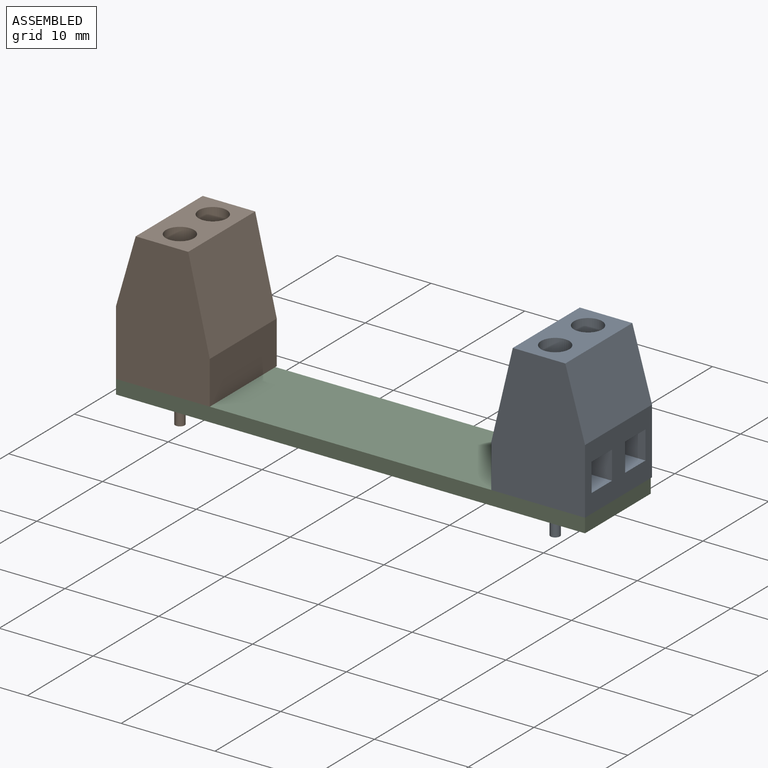
[diagram: assembled view]
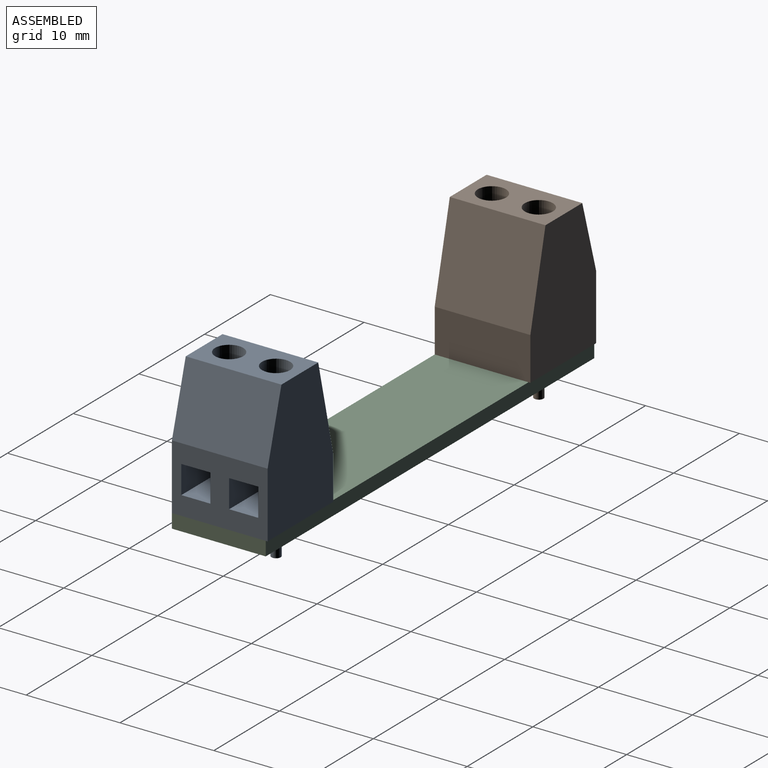
[diagram: assembled view, second angle]
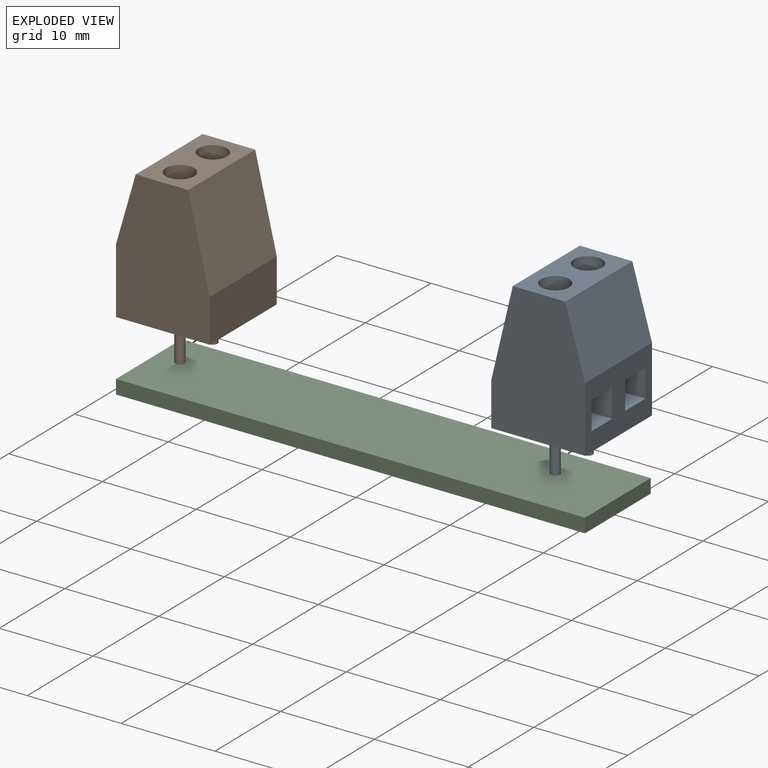
[diagram: exploded view]
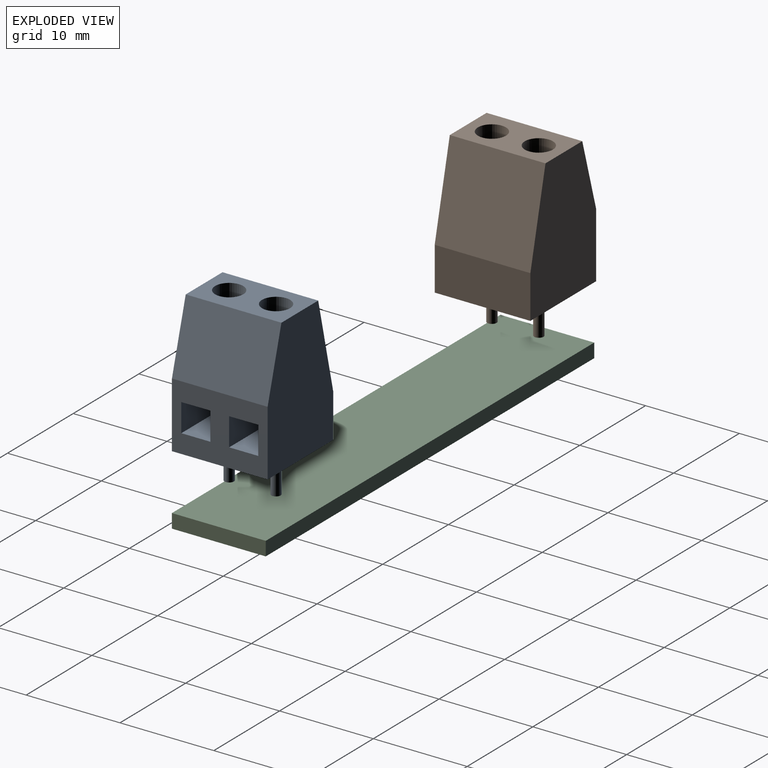
[diagram: exploded view, second angle]
ASSEMBLY  parts=3 mates=2
PART A: 26 faces, bbox 10x10.2x18.3 mm
  f0: plane 10.2x7mm, normal (1,0,0), area 52.8mm2, adj f3,f4,f6,f7,f12,f13,f14,f15
  f1: plane 10.2x9.7mm, normal (-0.97,0,0.23), area 101.7mm2, adj f2,f5,f6,f7
  f2: plane 10.2x4.6mm, normal (-1,0,0), area 46.9mm2, adj f1,f3,f6,f7
  f3: plane 10.2x10mm, normal (0,0,-1), area 100.4mm2, adj f0,f2,f6,f7,f8,f10
  f4: plane 10.2x7.3mm, normal (0.96,0,0.28), area 77.5mm2, adj f0,f5,f6,f7
  f5: plane 10.2x5.6mm, normal (0,0,1), area 43mm2, adj f1,f4,f6,f7,f22,f24
  f6: plane 14.3x10mm, normal (0,-1,0), area 124.2mm2, adj f0,f1,f2,f3,f4,f5
  f7: plane 14.3x10mm, normal (0,1,0), area 124.2mm2, adj f0,f1,f2,f3,f4,f5
  f8: cylinder r=0.5mm len=4mm, axis (0,0,1), area 12.6mm2, adj f3,f9
  f9: plane 1x1mm, normal (0,0,-1), area 0.8mm2, adj f8
  f10: cylinder r=0.5mm len=4mm, axis (0,0,1), area 12.6mm2, adj f3,f11
  f11: plane 1x1mm, normal (0,0,-1), area 0.8mm2, adj f10
  f12: plane 6x3mm, normal (0,1,0), area 18mm2, adj f0,f13,f15,f16
  f13: plane 6x3.1mm, normal (0,0,1), area 18.6mm2, adj f0,f12,f14,f16
  f14: plane 6x3mm, normal (0,-1,0), area 18mm2, adj f0,f13,f15,f16
  f15: plane 6x3.1mm, normal (0,0,-1), area 18.6mm2, adj f0,f12,f14,f16
  f16: plane 3.1x3mm, normal (1,0,0), area 9.3mm2, adj f12,f13,f14,f15
  f17: plane 6x3.1mm, normal (0,0,1), area 18.6mm2, adj f0,f18,f20,f21
  f18: plane 6x3mm, normal (0,-1,0), area 18mm2, adj f0,f17,f19,f21
  f19: plane 6x3.1mm, normal (0,0,-1), area 18.6mm2, adj f0,f18,f20,f21
  f20: plane 6x3mm, normal (0,1,0), area 18mm2, adj f0,f17,f19,f21
  f21: plane 3.1x3mm, normal (1,0,0), area 9.3mm2, adj f17,f18,f19,f20
  f22: cylinder r=1.5mm len=3mm, axis (0,0,1), area 28.3mm2, adj f5,f23
  f23: plane 3x3mm, normal (0,0,1), area 7.1mm2, adj f22
  f24: cylinder r=1.5mm len=3mm, axis (0,0,1), area 28.3mm2, adj f5,f25
  f25: plane 3x3mm, normal (0,0,1), area 7.1mm2, adj f24
PART B: same geometry as A
PART C: 6 faces, bbox 50x10x1.5 mm
  f0: plane 50x1.5mm, normal (0,-1,0), area 75mm2, adj f1,f3,f4,f5
  f1: plane 10x1.5mm, normal (1,0,0), area 15mm2, adj f0,f2,f4,f5
  f2: plane 50x1.5mm, normal (0,1,0), area 75mm2, adj f1,f3,f4,f5
  f3: plane 10x1.5mm, normal (-1,0,0), area 15mm2, adj f0,f2,f4,f5
  f4: plane 50x10mm, normal (0,0,-1), area 500mm2, adj f0,f1,f2,f3
  f5: plane 50x10mm, normal (0,0,1), area 500mm2, adj f0,f1,f2,f3
PLACE A t=(124.94,0.1,4.61)mm
PLACE B rot(axis=(0,0,-1),180deg) t=(-125.06,0.1,4.61)mm
PLACE C t=(43.87,33.18,4.61)mm
MATE fastened C.f5 <-> B.f3  axis (0,0,1) through (-25.06,-5,4.61)mm
MATE fastened C.f5 <-> A.f3  axis (0,0,1) through (24.94,-5,4.61)mm
